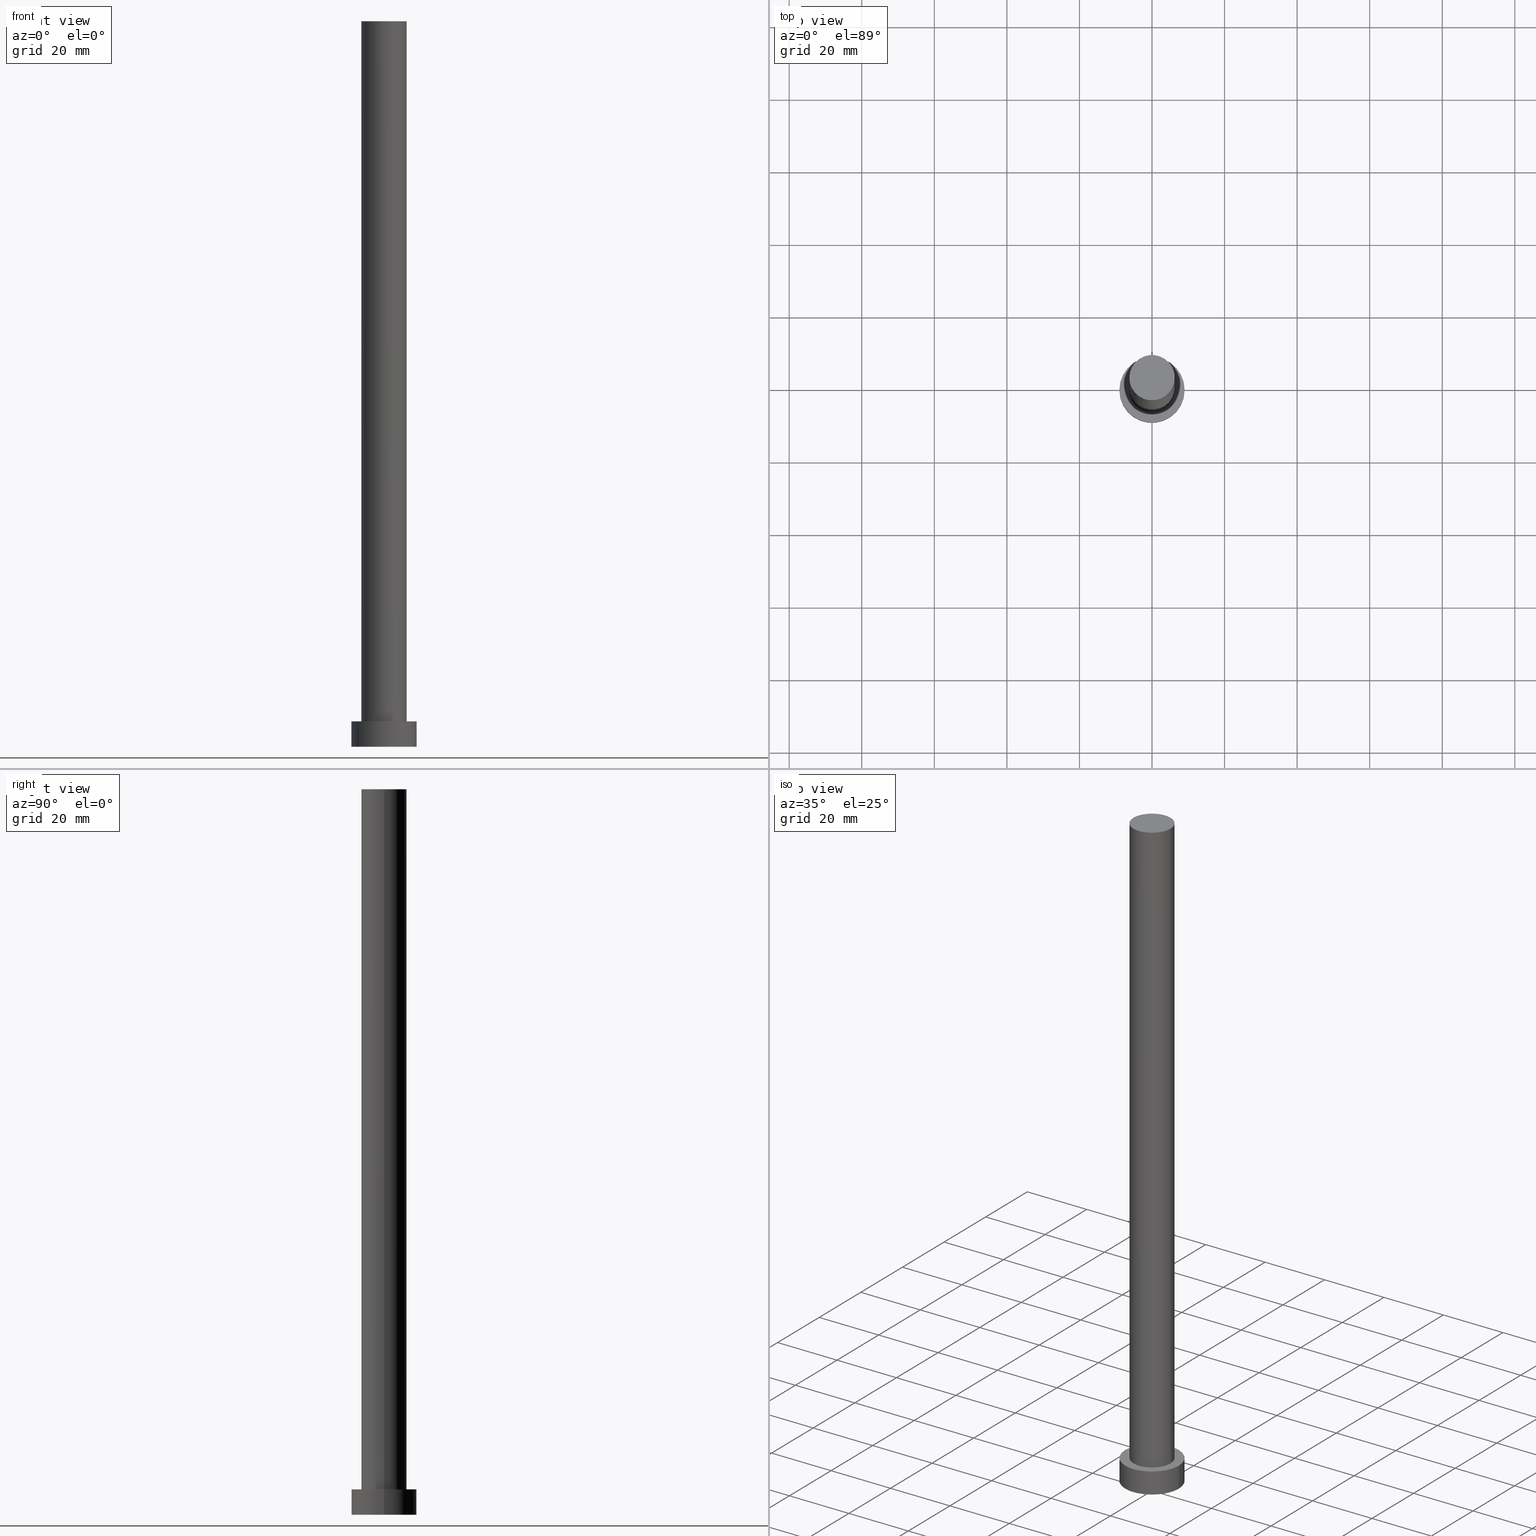
[diagram: canonical four-view strip — front | top / right | iso, engineering-drawing reading convention]
A machine part, canonical four-view strip (front | top / right | iso — engineering-drawing reading convention). The complete STEP part file that produces these views, byte-faithful:
ISO-10303-21;
HEADER;
FILE_DESCRIPTION (( 'STEP AP203' ),
    '1' );
FILE_NAME ('0e24.STEP',
    '2023-02-13T11:38:01',
    ( '' ),
    ( '' ),
    'SwSTEP 2.0',
    'SolidWorks 2019',
    '' );
FILE_SCHEMA (( 'CONFIG_CONTROL_DESIGN' ));
ENDSEC;

DATA;
#1 = APPROVAL_STATUS ( 'not_yet_approved' ) ;
#2 = ORIENTED_EDGE ( 'NONE', *, *, #157, .T. ) ;
#3 = CARTESIAN_POINT ( 'NONE',  ( 0.000000000000000000, 0.000000000000000000, 7.000000000000000000 ) ) ;
#4 = ORIENTED_EDGE ( 'NONE', *, *, #147, .T. ) ;
#5 = CARTESIAN_POINT ( 'NONE',  ( 0.000000000000000000, 0.000000000000000000, 200.0000000000000000 ) ) ;
#6 = COORDINATED_UNIVERSAL_TIME_OFFSET ( 1, 0, .AHEAD. ) ;
#7 = PERSON_AND_ORGANIZATION_ROLE ( 'creator' ) ;
#8 = APPLICATION_PROTOCOL_DEFINITION ( 'international standard', 'config_control_design', 1994, #204 ) ;
#9 = LINE ( 'NONE', #11, #250 ) ;
#10 = EDGE_CURVE ( 'NONE', #28, #195, #152, .T. ) ;
#11 = CARTESIAN_POINT ( 'NONE',  ( 6.250000000000000000, 7.654042494670957606E-16, 200.0000000000000000 ) ) ;
#12 = LOCAL_TIME ( 12, 38, 1.000000000000000000, #212 ) ;
#13 = AXIS2_PLACEMENT_3D ( 'NONE', #80, #170, #252 ) ;
#14 = EDGE_CURVE ( 'NONE', #195, #28, #255, .T. ) ;
#15 = CARTESIAN_POINT ( 'NONE',  ( 0.000000000000000000, 0.000000000000000000, 200.0000000000000000 ) ) ;
#16 = PLANE ( 'NONE',  #158 ) ;
#17 = DIRECTION ( 'NONE',  ( 0.000000000000000000, 0.000000000000000000, 1.000000000000000000 ) ) ;
#18 = ORIENTED_EDGE ( 'NONE', *, *, #203, .F. ) ;
#19 = DIRECTION ( 'NONE',  ( 1.000000000000000000, 0.000000000000000000, 0.000000000000000000 ) ) ;
#20 = DIRECTION ( 'NONE',  ( -0.000000000000000000, -0.000000000000000000, -1.000000000000000000 ) ) ;
#21 = PERSON_AND_ORGANIZATION ( #228, #27 ) ;
#22 = ORIENTED_EDGE ( 'NONE', *, *, #147, .F. ) ;
#23 = CARTESIAN_POINT ( 'NONE',  ( 6.250000000000000000, 7.654042494670957606E-16, 7.000000000000000000 ) ) ;
#24 = ORIENTED_EDGE ( 'NONE', *, *, #14, .F. ) ;
#25 = CALENDAR_DATE ( 2023, 13, 2 ) ;
#26 = PRODUCT_DEFINITION_SHAPE ( 'NONE', 'NONE',  #110 ) ;
#27 = ORGANIZATION ( 'NEUR�EN�', 'NEUR�EN�', '' ) ;
#28 = VERTEX_POINT ( 'NONE', #178 ) ;
#29 = CYLINDRICAL_SURFACE ( 'NONE', #31, 6.250000000000000000 ) ;
#30 = DIRECTION ( 'NONE',  ( -0.000000000000000000, -0.000000000000000000, -1.000000000000000000 ) ) ;
#31 = AXIS2_PLACEMENT_3D ( 'NONE', #5, #44, #100 ) ;
#32 = CC_DESIGN_APPROVAL ( #236, ( #110 ) ) ;
#33 = ADVANCED_FACE ( 'NONE', ( #190 ), #40, .T. ) ;
#34 = CC_DESIGN_DATE_AND_TIME_ASSIGNMENT ( #184, #222, ( #238 ) ) ;
#35 = CIRCLE ( 'NONE', #42, 6.250000000000000000 ) ;
#36 = ORIENTED_EDGE ( 'NONE', *, *, #181, .F. ) ;
#37 = DESIGN_CONTEXT ( 'detailed design', #204, 'design' ) ;
#38 =( LENGTH_UNIT ( ) NAMED_UNIT ( * ) SI_UNIT ( .MILLI., .METRE. ) );
#39 = PLANE ( 'NONE',  #131 ) ;
#40 = PLANE ( 'NONE',  #124 ) ;
#41 = ORIENTED_EDGE ( 'NONE', *, *, #214, .T. ) ;
#42 = AXIS2_PLACEMENT_3D ( 'NONE', #161, #122, #182 ) ;
#43 = ORIENTED_EDGE ( 'NONE', *, *, #157, .F. ) ;
#44 = DIRECTION ( 'NONE',  ( -0.000000000000000000, -0.000000000000000000, -1.000000000000000000 ) ) ;
#45 = ORIENTED_EDGE ( 'NONE', *, *, #203, .T. ) ;
#46 = CARTESIAN_POINT ( 'NONE',  ( -9.000000000000000000, 0.000000000000000000, 7.000000000000000000 ) ) ;
#47 = AXIS2_PLACEMENT_3D ( 'NONE', #233, #60, #163 ) ;
#48 = PRODUCT_RELATED_PRODUCT_CATEGORY ( 'detail', '', ( #141 ) ) ;
#49 = ADVANCED_FACE ( 'NONE', ( #193 ), #16, .F. ) ;
#50 = ORIENTED_EDGE ( 'NONE', *, *, #10, .T. ) ;
#51 = APPROVAL_DATE_TIME ( #245, #75 ) ;
#52 = FACE_OUTER_BOUND ( 'NONE', #243, .T. ) ;
#53 = CARTESIAN_POINT ( 'NONE',  ( -6.250000000000000000, 0.000000000000000000, 7.000000000000000000 ) ) ;
#54 = COORDINATED_UNIVERSAL_TIME_OFFSET ( 1, 0, .AHEAD. ) ;
#55 = DIRECTION ( 'NONE',  ( -1.000000000000000000, 0.000000000000000000, 0.000000000000000000 ) ) ;
#56 = CC_DESIGN_PERSON_AND_ORGANIZATION_ASSIGNMENT ( #71, #68, ( #238 ) ) ;
#57 = DIRECTION ( 'NONE',  ( 0.000000000000000000, 0.000000000000000000, 1.000000000000000000 ) ) ;
#58 = CC_DESIGN_SECURITY_CLASSIFICATION ( #238, ( #116 ) ) ;
#59 = LINE ( 'NONE', #172, #213 ) ;
#60 = DIRECTION ( 'NONE',  ( 0.000000000000000000, 0.000000000000000000, 1.000000000000000000 ) ) ;
#61 = AXIS2_PLACEMENT_3D ( 'NONE', #220, #84, #67 ) ;
#62 =( GEOMETRIC_REPRESENTATION_CONTEXT ( 3 ) GLOBAL_UNCERTAINTY_ASSIGNED_CONTEXT ( ( #225 ) ) GLOBAL_UNIT_ASSIGNED_CONTEXT ( ( #38, #189, #205 ) ) REPRESENTATION_CONTEXT ( 'NONE', 'WORKASPACE' ) );
#63 = CYLINDRICAL_SURFACE ( 'NONE', #73, 9.000000000000000000 ) ;
#64 = SHAPE_DEFINITION_REPRESENTATION ( #26, #108 ) ;
#65 = CARTESIAN_POINT ( 'NONE',  ( 0.000000000000000000, 0.000000000000000000, 0.000000000000000000 ) ) ;
#66 = ORIENTED_EDGE ( 'NONE', *, *, #109, .F. ) ;
#67 = DIRECTION ( 'NONE',  ( -1.000000000000000000, 0.000000000000000000, 0.000000000000000000 ) ) ;
#68 = PERSON_AND_ORGANIZATION_ROLE ( 'classification_officer' ) ;
#69 = VERTEX_POINT ( 'NONE', #78 ) ;
#70 = ORIENTED_EDGE ( 'NONE', *, *, #248, .F. ) ;
#71 = PERSON_AND_ORGANIZATION ( #228, #27 ) ;
#72 = APPROVAL_DATE_TIME ( #218, #236 ) ;
#73 = AXIS2_PLACEMENT_3D ( 'NONE', #3, #139, #87 ) ;
#74 = DIRECTION ( 'NONE',  ( 1.000000000000000000, 0.000000000000000000, -0.000000000000000000 ) ) ;
#75 = APPROVAL ( #171, 'NEUR�EN�' ) ;
#76 = APPROVAL_PERSON_ORGANIZATION ( #21, #75, #101 ) ;
#77 = CARTESIAN_POINT ( 'NONE',  ( 0.000000000000000000, 0.000000000000000000, 7.000000000000000000 ) ) ;
#78 = CARTESIAN_POINT ( 'NONE',  ( 6.250000000000000000, 7.654042494670957606E-16, 200.0000000000000000 ) ) ;
#79 = ORIENTED_EDGE ( 'NONE', *, *, #248, .T. ) ;
#80 = CARTESIAN_POINT ( 'NONE',  ( 0.000000000000000000, 0.000000000000000000, 7.000000000000000000 ) ) ;
#81 = VECTOR ( 'NONE', #20, 1000.000000000000000 ) ;
#82 = APPLICATION_PROTOCOL_DEFINITION ( 'international standard', 'config_control_design', 1994, #98 ) ;
#83 = ORIENTED_EDGE ( 'NONE', *, *, #153, .T. ) ;
#84 = DIRECTION ( 'NONE',  ( -0.000000000000000000, -0.000000000000000000, -1.000000000000000000 ) ) ;
#85 = APPROVAL_STATUS ( 'not_yet_approved' ) ;
#86 = DIRECTION ( 'NONE',  ( 0.000000000000000000, 0.000000000000000000, 1.000000000000000000 ) ) ;
#87 = DIRECTION ( 'NONE',  ( -1.000000000000000000, 0.000000000000000000, 0.000000000000000000 ) ) ;
#88 = PERSON_AND_ORGANIZATION ( #228, #27 ) ;
#89 = EDGE_LOOP ( 'NONE', ( #18, #22, #79, #95 ) ) ;
#90 = MANIFOLD_SOLID_BREP ( 'P�idat vysunut�m3', #111 ) ;
#91 = DIRECTION ( 'NONE',  ( 1.000000000000000000, 0.000000000000000000, 0.000000000000000000 ) ) ;
#92 = PERSON_AND_ORGANIZATION ( #228, #27 ) ;
#93 = PERSON_AND_ORGANIZATION ( #228, #27 ) ;
#94 = EDGE_CURVE ( 'NONE', #69, #121, #133, .T. ) ;
#95 = ORIENTED_EDGE ( 'NONE', *, *, #181, .T. ) ;
#96 = DIRECTION ( 'NONE',  ( 0.000000000000000000, 0.000000000000000000, 1.000000000000000000 ) ) ;
#97 = CARTESIAN_POINT ( 'NONE',  ( 0.000000000000000000, 0.000000000000000000, 0.000000000000000000 ) ) ;
#98 = APPLICATION_CONTEXT ( 'configuration controlled 3d designs of mechanical parts and assemblies' ) ;
#99 = VERTEX_POINT ( 'NONE', #211 ) ;
#100 = DIRECTION ( 'NONE',  ( -1.000000000000000000, 0.000000000000000000, 0.000000000000000000 ) ) ;
#101 = APPROVAL_ROLE ( '' ) ;
#102 = ORIENTED_EDGE ( 'NONE', *, *, #94, .T. ) ;
#103 = CC_DESIGN_PERSON_AND_ORGANIZATION_ASSIGNMENT ( #88, #217, ( #116 ) ) ;
#104 = AXIS2_PLACEMENT_3D ( 'NONE', #154, #227, #176 ) ;
#105 = EDGE_LOOP ( 'NONE', ( #143, #45, #254, #70 ) ) ;
#106 = CC_DESIGN_DATE_AND_TIME_ASSIGNMENT ( #221, #123, ( #110 ) ) ;
#107 = COORDINATED_UNIVERSAL_TIME_OFFSET ( 1, 0, .AHEAD. ) ;
#108 = ADVANCED_BREP_SHAPE_REPRESENTATION ( '0e24', ( #90, #169 ), #62 ) ;
#109 = EDGE_CURVE ( 'NONE', #191, #195, #196, .T. ) ;
#110 = PRODUCT_DEFINITION ( 'NEZN�M�', '', #116, #37 ) ;
#111 = CLOSED_SHELL ( 'NONE', ( #138, #114, #247, #210, #49, #118, #33 ) ) ;
#112 = DIRECTION ( 'NONE',  ( 0.000000000000000000, 0.000000000000000000, 1.000000000000000000 ) ) ;
#113 = LOCAL_TIME ( 12, 38, 1.000000000000000000, #120 ) ;
#114 = ADVANCED_FACE ( 'NONE', ( #202 ), #63, .T. ) ;
#115 = CIRCLE ( 'NONE', #209, 9.000000000000000000 ) ;
#116 = PRODUCT_DEFINITION_FORMATION_WITH_SPECIFIED_SOURCE ( 'LIBOVOLN�', '', #141, .NOT_KNOWN. ) ;
#117 = CARTESIAN_POINT ( 'NONE',  ( 0.000000000000000000, 0.000000000000000000, 200.0000000000000000 ) ) ;
#118 = ADVANCED_FACE ( 'NONE', ( #167 ), #29, .T. ) ;
#119 = FACE_OUTER_BOUND ( 'NONE', #105, .T. ) ;
#120 = COORDINATED_UNIVERSAL_TIME_OFFSET ( 1, 0, .AHEAD. ) ;
#121 = VERTEX_POINT ( 'NONE', #187 ) ;
#122 = DIRECTION ( 'NONE',  ( 0.000000000000000000, 0.000000000000000000, 1.000000000000000000 ) ) ;
#123 = DATE_TIME_ROLE ( 'creation_date' ) ;
#124 = AXIS2_PLACEMENT_3D ( 'NONE', #15, #112, #192 ) ;
#125 = EDGE_LOOP ( 'NONE', ( #4, #102 ) ) ;
#126 = LOCAL_TIME ( 12, 38, 1.000000000000000000, #54 ) ;
#127 = DIRECTION ( 'NONE',  ( 1.000000000000000000, 0.000000000000000000, 0.000000000000000000 ) ) ;
#128 = DIRECTION ( 'NONE',  ( -0.000000000000000000, -0.000000000000000000, -1.000000000000000000 ) ) ;
#129 = CALENDAR_DATE ( 2023, 13, 2 ) ;
#130 = CIRCLE ( 'NONE', #13, 9.000000000000000000 ) ;
#131 = AXIS2_PLACEMENT_3D ( 'NONE', #132, #96, #74 ) ;
#132 = CARTESIAN_POINT ( 'NONE',  ( 0.000000000000000000, 0.000000000000000000, 7.000000000000000000 ) ) ;
#133 = CIRCLE ( 'NONE', #47, 6.250000000000000000 ) ;
#134 = APPROVAL ( #85, 'NEUR�EN�' ) ;
#135 = DIRECTION ( 'NONE',  ( 1.000000000000000000, 0.000000000000000000, 0.000000000000000000 ) ) ;
#136 = CARTESIAN_POINT ( 'NONE',  ( 0.000000000000000000, 0.000000000000000000, 0.000000000000000000 ) ) ;
#137 = CC_DESIGN_APPROVAL ( #75, ( #116 ) ) ;
#138 = ADVANCED_FACE ( 'NONE', ( #119 ), #216, .T. ) ;
#139 = DIRECTION ( 'NONE',  ( -0.000000000000000000, -0.000000000000000000, -1.000000000000000000 ) ) ;
#140 = EDGE_LOOP ( 'NONE', ( #43, #41, #50, #66 ) ) ;
#141 = PRODUCT ( '0e24', '0e24', '', ( #240 ) ) ;
#142 = CALENDAR_DATE ( 2023, 13, 2 ) ;
#143 = ORIENTED_EDGE ( 'NONE', *, *, #94, .F. ) ;
#144 = AXIS2_PLACEMENT_3D ( 'NONE', #136, #57, #229 ) ;
#145 = ORIENTED_EDGE ( 'NONE', *, *, #206, .F. ) ;
#146 = APPROVAL_PERSON_ORGANIZATION ( #253, #134, #162 ) ;
#147 = EDGE_CURVE ( 'NONE', #121, #69, #177, .T. ) ;
#148 = SECURITY_CLASSIFICATION_LEVEL ( 'unclassified' ) ;
#149 = PERSON_AND_ORGANIZATION_ROLE ( 'design_owner' ) ;
#150 = APPROVAL_ROLE ( '' ) ;
#151 = CC_DESIGN_PERSON_AND_ORGANIZATION_ASSIGNMENT ( #188, #7, ( #110 ) ) ;
#152 = CIRCLE ( 'NONE', #144, 9.000000000000000000 ) ;
#153 = EDGE_CURVE ( 'NONE', #191, #99, #130, .T. ) ;
#154 = CARTESIAN_POINT ( 'NONE',  ( 0.000000000000000000, 0.000000000000000000, 7.000000000000000000 ) ) ;
#155 = LINE ( 'NONE', #232, #81 ) ;
#156 = DIRECTION ( 'NONE',  ( -0.000000000000000000, -0.000000000000000000, -1.000000000000000000 ) ) ;
#157 = EDGE_CURVE ( 'NONE', #99, #191, #115, .T. ) ;
#158 = AXIS2_PLACEMENT_3D ( 'NONE', #231, #17, #179 ) ;
#159 = APPROVAL_PERSON_ORGANIZATION ( #93, #236, #150 ) ;
#160 = DIRECTION ( 'NONE',  ( -0.000000000000000000, -0.000000000000000000, -1.000000000000000000 ) ) ;
#161 = CARTESIAN_POINT ( 'NONE',  ( 0.000000000000000000, 0.000000000000000000, 7.000000000000000000 ) ) ;
#162 = APPROVAL_ROLE ( '' ) ;
#163 = DIRECTION ( 'NONE',  ( 1.000000000000000000, 0.000000000000000000, 0.000000000000000000 ) ) ;
#164 = APPROVAL_DATE_TIME ( #235, #134 ) ;
#165 = ORIENTED_EDGE ( 'NONE', *, *, #214, .F. ) ;
#166 = CARTESIAN_POINT ( 'NONE',  ( -9.000000000000000000, 0.000000000000000000, 7.000000000000000000 ) ) ;
#167 = FACE_OUTER_BOUND ( 'NONE', #89, .T. ) ;
#168 = VERTEX_POINT ( 'NONE', #23 ) ;
#169 = AXIS2_PLACEMENT_3D ( 'NONE', #65, #86, #127 ) ;
#170 = DIRECTION ( 'NONE',  ( 0.000000000000000000, 0.000000000000000000, 1.000000000000000000 ) ) ;
#171 = APPROVAL_STATUS ( 'not_yet_approved' ) ;
#172 = CARTESIAN_POINT ( 'NONE',  ( -6.250000000000000000, 0.000000000000000000, 200.0000000000000000 ) ) ;
#173 = EDGE_LOOP ( 'NONE', ( #36, #145 ) ) ;
#174 = LOCAL_TIME ( 12, 38, 1.000000000000000000, #6 ) ;
#175 = CC_DESIGN_PERSON_AND_ORGANIZATION_ASSIGNMENT ( #246, #149, ( #141 ) ) ;
#176 = DIRECTION ( 'NONE',  ( 1.000000000000000000, 0.000000000000000000, 0.000000000000000000 ) ) ;
#177 = CIRCLE ( 'NONE', #234, 6.250000000000000000 ) ;
#178 = CARTESIAN_POINT ( 'NONE',  ( 9.000000000000000000, 1.102182119232617714E-15, 0.000000000000000000 ) ) ;
#179 = DIRECTION ( 'NONE',  ( 1.000000000000000000, 0.000000000000000000, -0.000000000000000000 ) ) ;
#180 = CIRCLE ( 'NONE', #104, 6.250000000000000000 ) ;
#181 = EDGE_CURVE ( 'NONE', #199, #168, #35, .T. ) ;
#182 = DIRECTION ( 'NONE',  ( 1.000000000000000000, 0.000000000000000000, 0.000000000000000000 ) ) ;
#183 = EDGE_LOOP ( 'NONE', ( #24, #219 ) ) ;
#184 = DATE_AND_TIME ( #224, #113 ) ;
#185 = AXIS2_PLACEMENT_3D ( 'NONE', #77, #156, #55 ) ;
#186 = CALENDAR_DATE ( 2023, 13, 2 ) ;
#187 = CARTESIAN_POINT ( 'NONE',  ( -6.250000000000000000, 0.000000000000000000, 200.0000000000000000 ) ) ;
#188 = PERSON_AND_ORGANIZATION ( #228, #27 ) ;
#189 =( NAMED_UNIT ( * ) PLANE_ANGLE_UNIT ( ) SI_UNIT ( $, .RADIAN. ) );
#190 = FACE_OUTER_BOUND ( 'NONE', #125, .T. ) ;
#191 = VERTEX_POINT ( 'NONE', #166 ) ;
#192 = DIRECTION ( 'NONE',  ( 1.000000000000000000, 0.000000000000000000, -0.000000000000000000 ) ) ;
#193 = FACE_OUTER_BOUND ( 'NONE', #183, .T. ) ;
#194 = FACE_OUTER_BOUND ( 'NONE', #201, .T. ) ;
#195 = VERTEX_POINT ( 'NONE', #239 ) ;
#196 = LINE ( 'NONE', #46, #208 ) ;
#197 = ORIENTED_EDGE ( 'NONE', *, *, #14, .T. ) ;
#198 = DIRECTION ( 'NONE',  ( 0.000000000000000000, 0.000000000000000000, 1.000000000000000000 ) ) ;
#199 = VERTEX_POINT ( 'NONE', #53 ) ;
#200 = DIRECTION ( 'NONE',  ( 0.000000000000000000, 0.000000000000000000, 1.000000000000000000 ) ) ;
#201 = EDGE_LOOP ( 'NONE', ( #165, #237, #215, #197 ) ) ;
#202 = FACE_OUTER_BOUND ( 'NONE', #140, .T. ) ;
#203 = EDGE_CURVE ( 'NONE', #69, #168, #9, .T. ) ;
#204 = APPLICATION_CONTEXT ( 'configuration controlled 3d designs of mechanical parts and assemblies' ) ;
#205 =( NAMED_UNIT ( * ) SI_UNIT ( $, .STERADIAN. ) SOLID_ANGLE_UNIT ( ) );
#206 = EDGE_CURVE ( 'NONE', #168, #199, #180, .T. ) ;
#207 = DIRECTION ( 'NONE',  ( 0.000000000000000000, 0.000000000000000000, 1.000000000000000000 ) ) ;
#208 = VECTOR ( 'NONE', #128, 1000.000000000000000 ) ;
#209 = AXIS2_PLACEMENT_3D ( 'NONE', #244, #200, #19 ) ;
#210 = ADVANCED_FACE ( 'NONE', ( #223, #52 ), #39, .T. ) ;
#211 = CARTESIAN_POINT ( 'NONE',  ( 9.000000000000000000, 1.102182119232617714E-15, 7.000000000000000000 ) ) ;
#212 = COORDINATED_UNIVERSAL_TIME_OFFSET ( 1, 0, .AHEAD. ) ;
#213 = VECTOR ( 'NONE', #160, 1000.000000000000000 ) ;
#214 = EDGE_CURVE ( 'NONE', #99, #28, #155, .T. ) ;
#215 = ORIENTED_EDGE ( 'NONE', *, *, #109, .T. ) ;
#216 = CYLINDRICAL_SURFACE ( 'NONE', #61, 6.250000000000000000 ) ;
#217 = PERSON_AND_ORGANIZATION_ROLE ( 'design_supplier' ) ;
#218 = DATE_AND_TIME ( #142, #126 ) ;
#219 = ORIENTED_EDGE ( 'NONE', *, *, #10, .F. ) ;
#220 = CARTESIAN_POINT ( 'NONE',  ( 0.000000000000000000, 0.000000000000000000, 200.0000000000000000 ) ) ;
#221 = DATE_AND_TIME ( #186, #12 ) ;
#222 = DATE_TIME_ROLE ( 'classification_date' ) ;
#223 = FACE_BOUND ( 'NONE', #173, .T. ) ;
#224 = CALENDAR_DATE ( 2023, 13, 2 ) ;
#225 = UNCERTAINTY_MEASURE_WITH_UNIT (LENGTH_MEASURE( 1.000000000000000082E-05 ), #38, 'distance_accuracy_value', 'NONE');
#226 = CC_DESIGN_PERSON_AND_ORGANIZATION_ASSIGNMENT ( #92, #242, ( #116 ) ) ;
#227 = DIRECTION ( 'NONE',  ( 0.000000000000000000, 0.000000000000000000, 1.000000000000000000 ) ) ;
#228 = PERSON ( 'NEUR�EN�', 'NEUR�EN�', 'NEUR�EN�', ('NEUR�EN�'), ('NEUR�EN�'), ('NEUR�EN�') ) ;
#229 = DIRECTION ( 'NONE',  ( 1.000000000000000000, 0.000000000000000000, 0.000000000000000000 ) ) ;
#230 = LOCAL_TIME ( 12, 38, 1.000000000000000000, #107 ) ;
#231 = CARTESIAN_POINT ( 'NONE',  ( 0.000000000000000000, 0.000000000000000000, 0.000000000000000000 ) ) ;
#232 = CARTESIAN_POINT ( 'NONE',  ( 9.000000000000000000, 1.102182119232617714E-15, 7.000000000000000000 ) ) ;
#233 = CARTESIAN_POINT ( 'NONE',  ( 0.000000000000000000, 0.000000000000000000, 200.0000000000000000 ) ) ;
#234 = AXIS2_PLACEMENT_3D ( 'NONE', #117, #198, #91 ) ;
#235 = DATE_AND_TIME ( #25, #174 ) ;
#236 = APPROVAL ( #1, 'NEUR�EN�' ) ;
#237 = ORIENTED_EDGE ( 'NONE', *, *, #153, .F. ) ;
#238 = SECURITY_CLASSIFICATION ( '', '', #148 ) ;
#239 = CARTESIAN_POINT ( 'NONE',  ( -9.000000000000000000, 0.000000000000000000, 0.000000000000000000 ) ) ;
#240 = MECHANICAL_CONTEXT ( 'NONE', #98, 'mechanical' ) ;
#241 = AXIS2_PLACEMENT_3D ( 'NONE', #97, #207, #135 ) ;
#242 = PERSON_AND_ORGANIZATION_ROLE ( 'creator' ) ;
#243 = EDGE_LOOP ( 'NONE', ( #83, #2 ) ) ;
#244 = CARTESIAN_POINT ( 'NONE',  ( 0.000000000000000000, 0.000000000000000000, 7.000000000000000000 ) ) ;
#245 = DATE_AND_TIME ( #129, #230 ) ;
#246 = PERSON_AND_ORGANIZATION ( #228, #27 ) ;
#247 = ADVANCED_FACE ( 'NONE', ( #194 ), #251, .T. ) ;
#248 = EDGE_CURVE ( 'NONE', #121, #199, #59, .T. ) ;
#249 = CC_DESIGN_APPROVAL ( #134, ( #238 ) ) ;
#250 = VECTOR ( 'NONE', #30, 1000.000000000000000 ) ;
#251 = CYLINDRICAL_SURFACE ( 'NONE', #185, 9.000000000000000000 ) ;
#252 = DIRECTION ( 'NONE',  ( 1.000000000000000000, 0.000000000000000000, 0.000000000000000000 ) ) ;
#253 = PERSON_AND_ORGANIZATION ( #228, #27 ) ;
#254 = ORIENTED_EDGE ( 'NONE', *, *, #206, .T. ) ;
#255 = CIRCLE ( 'NONE', #241, 9.000000000000000000 ) ;
ENDSEC;
END-ISO-10303-21;
